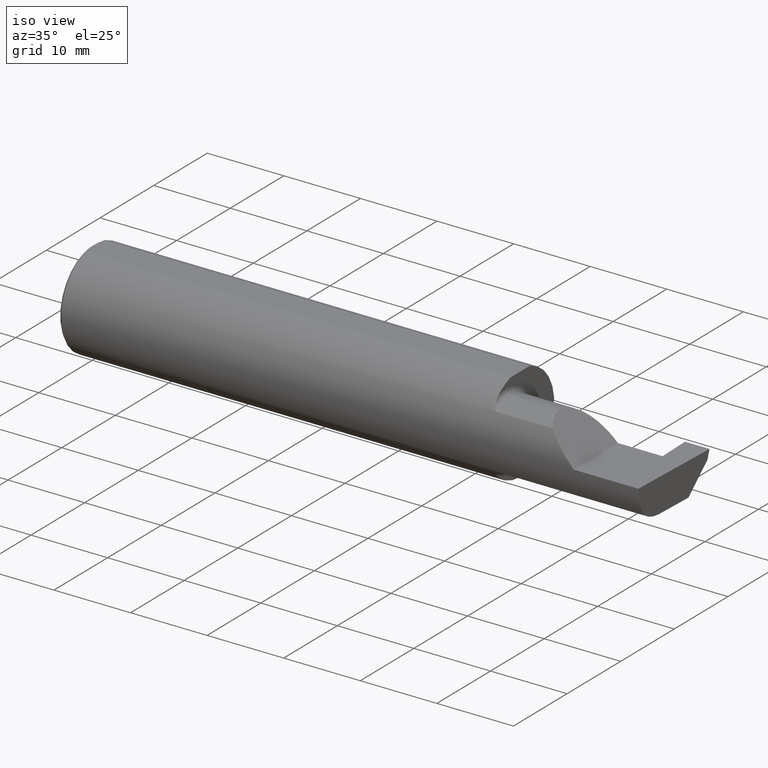
[diagram: clean part render]
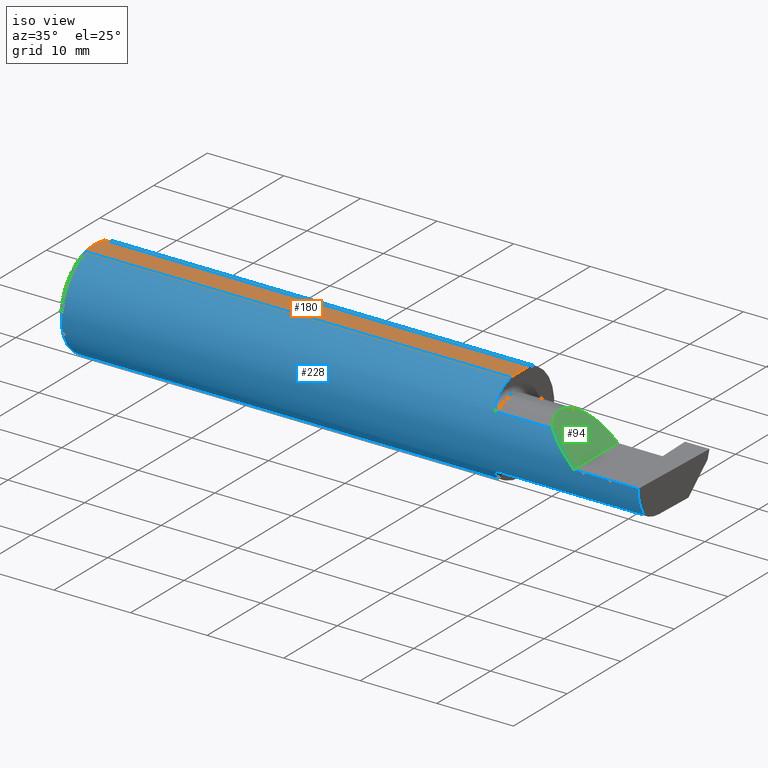
[diagram: same view with three faces highlighted in distinct colors, each labeled with its STEP entity id]
A machine part, iso view with three faces highlighted in distinct colors.
Their STEP definitions:

[orange] entity #180 — the highlighted planar face has unit normal (0, -0, 1).
#27 = CARTESIAN_POINT ( 'NONE',  ( 0.004999999999999471013, 5.665694022114171174E-17, 0.2398500000000000076 ) ) ;
#67 = VECTOR ( 'NONE', #80, 39.37007874015748143 ) ;
#80 = DIRECTION ( 'NONE',  ( -1.000000000000000000, -0.000000000000000000, -0.000000000000000000 ) ) ;
#81 = CARTESIAN_POINT ( 'NONE',  ( 0.005899890343961326084, 0.02378560009989246285, 0.2398500000000000076 ) ) ;
#87 = PLANE ( 'NONE',  #215 ) ;
#91 = ORIENTED_EDGE ( 'NONE', *, *, #401, .T. ) ;
#136 = CARTESIAN_POINT ( 'NONE',  ( 0.009312860630924745670, 0.04712480857212029278, 0.2398500000000000354 ) ) ;
#158 = LINE ( 'NONE', #718, #653 ) ;
#170 = CARTESIAN_POINT ( 'NONE',  ( 0.000000000000000000, -0.06997856814768359246, 0.2398500000000000076 ) ) ;
#180 = ADVANCED_FACE ( 'NONE', ( #336 ), #87, .T. ) ;
#200 = CARTESIAN_POINT ( 'NONE',  ( 0.01180609504125290643, -0.05857511741890331081, 0.2398500000000000076 ) ) ;
#206 = EDGE_CURVE ( 'NONE', #656, #283, #346, .T. ) ;
#215 = AXIS2_PLACEMENT_3D ( 'NONE', #462, #634, #456 ) ;
#244 = ORIENTED_EDGE ( 'NONE', *, *, #646, .T. ) ;
#252 = EDGE_CURVE ( 'NONE', #283, #751, #549, .T. ) ;
#264 = VERTEX_POINT ( 'NONE', #696 ) ;
#277 = CARTESIAN_POINT ( 'NONE',  ( 0.005880636388018715098, -0.02358947477502551168, 0.2398500000000000354 ) ) ;
#283 = VERTEX_POINT ( 'NONE', #757 ) ;
#336 = FACE_OUTER_BOUND ( 'NONE', #417, .T. ) ;
#346 = B_SPLINE_CURVE_WITH_KNOTS ( 'NONE', 3,
 ( #521, #577, #136, #81, #402, #570 ),
 .UNSPECIFIED., .F., .F.,
 ( 4, 2, 4 ),
 ( 0.006064768674679249863, 0.006954995897674296282, 0.007845223120669342701 ),
 .UNSPECIFIED. ) ;
#391 = LINE ( 'NONE', #579, #67 ) ;
#401 = EDGE_CURVE ( 'NONE', #477, #264, #158, .T. ) ;
#402 = CARTESIAN_POINT ( 'NONE',  ( 0.004999999999999748569, 0.01185123536186985863, 0.2398500000000000354 ) ) ;
#417 = EDGE_LOOP ( 'NONE', ( #603, #91, #244, #541, #454 ) ) ;
#430 = CARTESIAN_POINT ( 'NONE',  ( 2.200000000000000178, -0.06997856814768374512, 0.2398500000000000076 ) ) ;
#454 = ORIENTED_EDGE ( 'NONE', *, *, #252, .T. ) ;
#456 = DIRECTION ( 'NONE',  ( 1.000000000000000000, 0.000000000000000000, -0.000000000000000000 ) ) ;
#462 = CARTESIAN_POINT ( 'NONE',  ( 3.000000000000000444, -0.2498499999999999888, 0.2398500000000000076 ) ) ;
#468 = LINE ( 'NONE', #170, #632 ) ;
#475 = DIRECTION ( 'NONE',  ( 1.000000000000000000, 0.000000000000000000, 0.000000000000000000 ) ) ;
#477 = VERTEX_POINT ( 'NONE', #430 ) ;
#511 = CARTESIAN_POINT ( 'NONE',  ( 0.009274236576542579241, -0.04692405468904849164, 0.2398500000000000354 ) ) ;
#521 = CARTESIAN_POINT ( 'NONE',  ( 0.01499999999999998036, 0.06997856814768359246, 0.2398500000000000076 ) ) ;
#541 = ORIENTED_EDGE ( 'NONE', *, *, #206, .T. ) ;
#549 = B_SPLINE_CURVE_WITH_KNOTS ( 'NONE', 3,
 ( #27, #753, #277, #511, #200, #630 ),
 .UNSPECIFIED., .F., .F.,
 ( 4, 2, 4 ),
 ( 0.007845223120669342701, 0.008734561288375080820, 0.009623899456080818940 ),
 .UNSPECIFIED. ) ;
#570 = CARTESIAN_POINT ( 'NONE',  ( 0.004999999999999471013, 5.665694022114171174E-17, 0.2398500000000000076 ) ) ;
#577 = CARTESIAN_POINT ( 'NONE',  ( 0.01181966702888963446, 0.05862357455657472849, 0.2398500000000000631 ) ) ;
#579 = CARTESIAN_POINT ( 'NONE',  ( 0.000000000000000000, 0.06997856814768359246, 0.2398500000000000076 ) ) ;
#593 = DIRECTION ( 'NONE',  ( -0.000000000000000000, 1.000000000000000000, 0.000000000000000000 ) ) ;
#603 = ORIENTED_EDGE ( 'NONE', *, *, #737, .T. ) ;
#630 = CARTESIAN_POINT ( 'NONE',  ( 0.01499999999999999944, -0.06997856814768359246, 0.2398500000000000076 ) ) ;
#632 = VECTOR ( 'NONE', #475, 39.37007874015748143 ) ;
#634 = DIRECTION ( 'NONE',  ( 0.000000000000000000, -0.000000000000000000, 1.000000000000000000 ) ) ;
#646 = EDGE_CURVE ( 'NONE', #264, #656, #391, .T. ) ;
#653 = VECTOR ( 'NONE', #593, 39.37007874015748143 ) ;
#656 = VERTEX_POINT ( 'NONE', #747 ) ;
#696 = CARTESIAN_POINT ( 'NONE',  ( 2.200000000000000178, 0.06997856814768360634, 0.2398500000000000076 ) ) ;
#710 = CARTESIAN_POINT ( 'NONE',  ( 0.01499999999999999944, -0.06997856814768359246, 0.2398500000000000076 ) ) ;
#718 = CARTESIAN_POINT ( 'NONE',  ( 2.200000000000000178, -0.2498499999999999888, 0.2398500000000000076 ) ) ;
#737 = EDGE_CURVE ( 'NONE', #751, #477, #468, .T. ) ;
#747 = CARTESIAN_POINT ( 'NONE',  ( 0.01499999999999998036, 0.06997856814768359246, 0.2398500000000000076 ) ) ;
#751 = VERTEX_POINT ( 'NONE', #710 ) ;
#753 = CARTESIAN_POINT ( 'NONE',  ( 0.004999999999999737293, -0.01183939972798749192, 0.2398500000000000631 ) ) ;
#757 = CARTESIAN_POINT ( 'NONE',  ( 0.004999999999999471013, 5.665694022114171174E-17, 0.2398500000000000076 ) ) ;

[blue] entity #228 — the highlighted cylindrical surface (partial cylindrical patch) has radius 6.3462 mm, axis along (-1, -0, -0).
#10 = EDGE_CURVE ( 'NONE', #130, #264, #173, .T. ) ;
#14 = CARTESIAN_POINT ( 'NONE',  ( 2.200000000000000178, -0.1616050818046604332, 0.1905487340154980169 ) ) ;
#20 = LINE ( 'NONE', #647, #278 ) ;
#23 = CARTESIAN_POINT ( 'NONE',  ( 2.980602402804240381, -0.2354324170447252007, -0.09714751587401852795 ) ) ;
#25 = ORIENTED_EDGE ( 'NONE', *, *, #394, .F. ) ;
#57 = LINE ( 'NONE', #310, #383 ) ;
#58 = CARTESIAN_POINT ( 'NONE',  ( 2.511704467739034552, -0.2080850024789292485, 0.1382955322609664139 ) ) ;
#64 = CARTESIAN_POINT ( 'NONE',  ( 2.221700027347579098, -0.2077785947292768720, -0.1387580622202825020 ) ) ;
#67 = VECTOR ( 'NONE', #80, 39.37007874015748143 ) ;
#75 = CARTESIAN_POINT ( 'NONE',  ( 2.201849548162864600, -0.1805300287242674051, 0.1728462070311779786 ) ) ;
#79 = EDGE_CURVE ( 'NONE', #399, #578, #664, .T. ) ;
#80 = DIRECTION ( 'NONE',  ( -1.000000000000000000, -0.000000000000000000, -0.000000000000000000 ) ) ;
#90 = DIRECTION ( 'NONE',  ( 0.000000000000000000, 0.000000000000000000, 1.000000000000000000 ) ) ;
#98 = VERTEX_POINT ( 'NONE', #253 ) ;
#106 = AXIS2_PLACEMENT_3D ( 'NONE', #450, #447, #691 ) ;
#112 = CARTESIAN_POINT ( 'NONE',  ( 2.199999999999998845, -0.1716188362992555061, -0.1820560320165479640 ) ) ;
#128 = CARTESIAN_POINT ( 'NONE',  ( 2.223318040126429640, -0.2080850024789290820, -0.1382955322609666915 ) ) ;
#130 = VERTEX_POINT ( 'NONE', #750 ) ;
#131 = CARTESIAN_POINT ( 'NONE',  ( 2.218876997637615034, -0.2068363917296600907, 0.1401586554522229189 ) ) ;
#142 = ORIENTED_EDGE ( 'NONE', *, *, #164, .T. ) ;
#144 = CARTESIAN_POINT ( 'NONE',  ( 2.206159563508733878, -0.1933019864360849271, 0.1584298865564830183 ) ) ;
#146 = AXIS2_PLACEMENT_3D ( 'NONE', #347, #171, #763 ) ;
#150 = FACE_OUTER_BOUND ( 'NONE', #524, .T. ) ;
#155 = CARTESIAN_POINT ( 'NONE',  ( 2.650000000000000355, -0.2498499999999999610, 4.286263797015727350E-17 ) ) ;
#164 = EDGE_CURVE ( 'NONE', #245, #411, #20, .T. ) ;
#170 = CARTESIAN_POINT ( 'NONE',  ( 0.000000000000000000, -0.06997856814768359246, 0.2398500000000000076 ) ) ;
#171 = DIRECTION ( 'NONE',  ( -1.000000000000000000, -0.000000000000000000, -0.000000000000000000 ) ) ;
#172 = ORIENTED_EDGE ( 'NONE', *, *, #535, .F. ) ;
#173 = CIRCLE ( 'NONE', #628, 0.2498499999999999888 ) ;
#185 = CARTESIAN_POINT ( 'NONE',  ( 2.549499999999999655, -0.2080850024789291652, 0.1382955322609665250 ) ) ;
#187 = VERTEX_POINT ( 'NONE', #688 ) ;
#190 = VECTOR ( 'NONE', #576, 39.37007874015748143 ) ;
#203 = CARTESIAN_POINT ( 'NONE',  ( 0.000000000000000000, 0.000000000000000000, 0.000000000000000000 ) ) ;
#204 = ORIENTED_EDGE ( 'NONE', *, *, #651, .T. ) ;
#213 = CARTESIAN_POINT ( 'NONE',  ( 2.221718393013767834, -0.2077830475237241459, 0.1387513848711935949 ) ) ;
#216 = CIRCLE ( 'NONE', #602, 0.2498499999999999888 ) ;
#225 = ORIENTED_EDGE ( 'NONE', *, *, #79, .T. ) ;
#228 = ADVANCED_FACE ( 'NONE', ( #150 ), #339, .T. ) ;
#233 = VERTEX_POINT ( 'NONE', #761 ) ;
#238 = CARTESIAN_POINT ( 'NONE',  ( 2.208176740666626614, -0.1972027065478074437, -0.1535263573771913914 ) ) ;
#245 = VERTEX_POINT ( 'NONE', #515 ) ;
#247 = DIRECTION ( 'NONE',  ( 1.000000000000000000, 0.000000000000000000, 0.000000000000000000 ) ) ;
#253 = CARTESIAN_POINT ( 'NONE',  ( 2.980479240051444378, -0.2080850024789291652, -0.1382955322609665250 ) ) ;
#263 = CARTESIAN_POINT ( 'NONE',  ( 2.212616400345755796, -0.2024684335577102701, 0.1464246884265637538 ) ) ;
#264 = VERTEX_POINT ( 'NONE', #696 ) ;
#269 = B_SPLINE_CURVE_WITH_KNOTS ( 'NONE', 3,
 ( #373, #128, #64, #543, #617, #741, #783, #238, #299, #726, #112, #572 ),
 .UNSPECIFIED., .F., .F.,
 ( 4, 2, 2, 2, 2, 4 ),
 ( 1.964491429041408350E-07, 0.0001260981470478282575, 0.0002519998449527523351, 0.0005038032407626152898, 0.001007410032382341199, 0.002014623615621801908 ),
 .UNSPECIFIED. ) ;
#275 = ORIENTED_EDGE ( 'NONE', *, *, #567, .T. ) ;
#278 = VECTOR ( 'NONE', #699, 39.37007874015748854 ) ;
#299 = CARTESIAN_POINT ( 'NONE',  ( 2.206147634408387681, -0.1932733126899461307, -0.1584637047788196584 ) ) ;
#301 = ORIENTED_EDGE ( 'NONE', *, *, #646, .F. ) ;
#307 = CARTESIAN_POINT ( 'NONE',  ( 2.200000000000000178, 0.000000000000000000, 0.000000000000000000 ) ) ;
#310 = CARTESIAN_POINT ( 'NONE',  ( 2.549499999999999655, -0.2080850024789291652, -0.1382955322609665250 ) ) ;
#317 = CARTESIAN_POINT ( 'NONE',  ( 2.600434159100403875, -0.2498499999999999055, 0.04956584089959691769 ) ) ;
#330 = CARTESIAN_POINT ( 'NONE',  ( 2.225000000000000089, -0.2080850024789291375, -0.1382955322609665805 ) ) ;
#333 = ORIENTED_EDGE ( 'NONE', *, *, #518, .F. ) ;
#339 = CYLINDRICAL_SURFACE ( 'NONE', #640, 0.2498499999999999888 ) ;
#347 = CARTESIAN_POINT ( 'NONE',  ( 0.01499999999999999944, 0.000000000000000000, 0.000000000000000000 ) ) ;
#355 = CARTESIAN_POINT ( 'NONE',  ( 2.225000000000000089, -0.2080850024789292485, 0.1382955322609664972 ) ) ;
#358 = VECTOR ( 'NONE', #434, 39.37007874015748143 ) ;
#369 = CARTESIAN_POINT ( 'NONE',  ( 2.200000000000000178, 0.000000000000000000, 0.000000000000000000 ) ) ;
#373 = CARTESIAN_POINT ( 'NONE',  ( 2.225000000000000089, -0.2080850024789291375, -0.1382955322609665805 ) ) ;
#376 = DIRECTION ( 'NONE',  ( -1.000000000000000000, -0.000000000000000000, -0.000000000000000000 ) ) ;
#379 = VERTEX_POINT ( 'NONE', #355 ) ;
#381 = CARTESIAN_POINT ( 'NONE',  ( 2.650000000000000355, -0.2498499999999999610, 4.286263797015727350E-17 ) ) ;
#383 = VECTOR ( 'NONE', #376, 39.37007874015748143 ) ;
#391 = LINE ( 'NONE', #579, #67 ) ;
#394 = EDGE_CURVE ( 'NONE', #187, #751, #500, .T. ) ;
#399 = VERTEX_POINT ( 'NONE', #155 ) ;
#400 = CARTESIAN_POINT ( 'NONE',  ( 2.200000000000000178, -0.1665641037263010105, 0.1863429692936361681 ) ) ;
#411 = VERTEX_POINT ( 'NONE', #778 ) ;
#430 = CARTESIAN_POINT ( 'NONE',  ( 2.200000000000000178, -0.06997856814768374512, 0.2398500000000000076 ) ) ;
#434 = DIRECTION ( 'NONE',  ( 1.000000000000000000, 0.000000000000000000, 0.000000000000000000 ) ) ;
#439 = DIRECTION ( 'NONE',  ( 0.000000000000000000, 0.000000000000000000, -1.000000000000000000 ) ) ;
#447 = DIRECTION ( 'NONE',  ( -1.000000000000000000, -0.000000000000000000, -0.000000000000000000 ) ) ;
#449 = ORIENTED_EDGE ( 'NONE', *, *, #542, .F. ) ;
#450 = CARTESIAN_POINT ( 'NONE',  ( 0.01499999999999999944, 0.000000000000000000, 0.000000000000000000 ) ) ;
#455 = CARTESIAN_POINT ( 'NONE',  ( 2.980479240051444378, -0.2080850024789291652, -0.1382955322609665250 ) ) ;
#457 = ORIENTED_EDGE ( 'NONE', *, *, #560, .F. ) ;
#461 = CIRCLE ( 'NONE', #106, 0.2498499999999999888 ) ;
#468 = LINE ( 'NONE', #170, #632 ) ;
#469 = EDGE_CURVE ( 'NONE', #98, #648, #57, .T. ) ;
#470 = ORIENTED_EDGE ( 'NONE', *, *, #737, .F. ) ;
#475 = DIRECTION ( 'NONE',  ( 1.000000000000000000, 0.000000000000000000, 0.000000000000000000 ) ) ;
#477 = VERTEX_POINT ( 'NONE', #430 ) ;
#493 = LINE ( 'NONE', #185, #358 ) ;
#500 = CIRCLE ( 'NONE', #146, 0.2498499999999999888 ) ;
#504 = ORIENTED_EDGE ( 'NONE', *, *, #620, .F. ) ;
#506 = CARTESIAN_POINT ( 'NONE',  ( 2.982632426700501327, -0.2498495826666993214, -0.0004566631977848650934 ) ) ;
#510 = CARTESIAN_POINT ( 'NONE',  ( 2.214343523383978773, -0.2041337200786084161, 0.1440846171672511278 ) ) ;
#514 = CARTESIAN_POINT ( 'NONE',  ( 2.208182335268384033, -0.1972192205116131414, 0.1535061413537209263 ) ) ;
#515 = CARTESIAN_POINT ( 'NONE',  ( 2.982632426700501327, -0.2498495826666993214, -0.0004566631977848650934 ) ) ;
#517 = CARTESIAN_POINT ( 'NONE',  ( 4.499279347985559139E-32, -0.2498499999999999610, 3.673940397442053459E-16 ) ) ;
#518 = EDGE_CURVE ( 'NONE', #477, #233, #216, .T. ) ;
#520 = CARTESIAN_POINT ( 'NONE',  ( 2.981341028891337785, -0.2497592792593325561, -0.04986346618389873170 ) ) ;
#524 = EDGE_LOOP ( 'NONE', ( #142, #275, #225, #172, #457, #333, #470, #25, #504, #301, #716, #449, #531, #204 ) ) ;
#531 = ORIENTED_EDGE ( 'NONE', *, *, #469, .F. ) ;
#535 = EDGE_CURVE ( 'NONE', #379, #578, #493, .T. ) ;
#542 = EDGE_CURVE ( 'NONE', #648, #130, #269, .T. ) ;
#543 = CARTESIAN_POINT ( 'NONE',  ( 2.218863362722770294, -0.2068301641248771472, -0.1401678546132359982 ) ) ;
#557 = DIRECTION ( 'NONE',  ( 1.000000000000000000, 0.000000000000000000, 0.000000000000000000 ) ) ;
#560 = EDGE_CURVE ( 'NONE', #233, #379, #773, .T. ) ;
#565 = CARTESIAN_POINT ( 'NONE',  ( 2.223329956043142541, -0.2080850024798589770, 0.1382955322595675884 ) ) ;
#567 = EDGE_CURVE ( 'NONE', #411, #399, #756, .T. ) ;
#569 = CARTESIAN_POINT ( 'NONE',  ( 2.225000000000000089, -0.2080850024789292485, 0.1382955322609664972 ) ) ;
#572 = CARTESIAN_POINT ( 'NONE',  ( 2.200000000000000178, -0.1616050818046604332, -0.1905487340154980169 ) ) ;
#575 =( BOUNDED_CURVE ( )  B_SPLINE_CURVE ( 3, ( #455, #23, #520, #506 ),
 .UNSPECIFIED., .F., .T. ) 
 B_SPLINE_CURVE_WITH_KNOTS ( ( 4, 4 ),
 ( 0.05713034791898981279, 0.6418805321921904339 ),
 .UNSPECIFIED. ) 
 CURVE ( )  GEOMETRIC_REPRESENTATION_ITEM ( )  RATIONAL_B_SPLINE_CURVE ( ( 1.000000000000000000, 0.9717080070095597266, 0.9717080070095597266, 1.000000000000000000 ) ) 
 REPRESENTATION_ITEM ( '' )  );
#576 = DIRECTION ( 'NONE',  ( -1.000000000000000000, -0.000000000000000000, -0.000000000000000000 ) ) ;
#578 = VERTEX_POINT ( 'NONE', #760 ) ;
#579 = CARTESIAN_POINT ( 'NONE',  ( 0.000000000000000000, 0.06997856814768359246, 0.2398500000000000076 ) ) ;
#602 = AXIS2_PLACEMENT_3D ( 'NONE', #369, #247, #439 ) ;
#617 = CARTESIAN_POINT ( 'NONE',  ( 2.217611663768900510, -0.2061921161193830954, -0.1411075319999377242 ) ) ;
#620 = EDGE_CURVE ( 'NONE', #656, #187, #461, .T. ) ;
#628 = AXIS2_PLACEMENT_3D ( 'NONE', #307, #557, #744 ) ;
#632 = VECTOR ( 'NONE', #475, 39.37007874015748143 ) ;
#640 = AXIS2_PLACEMENT_3D ( 'NONE', #203, #693, #90 ) ;
#646 = EDGE_CURVE ( 'NONE', #264, #656, #391, .T. ) ;
#647 = CARTESIAN_POINT ( 'NONE',  ( 2.977412177158956563, -0.2496672875357696664, -0.1999314649951114686 ) ) ;
#648 = VERTEX_POINT ( 'NONE', #330 ) ;
#651 = EDGE_CURVE ( 'NONE', #98, #245, #575, .T. ) ;
#656 = VERTEX_POINT ( 'NONE', #747 ) ;
#664 =( BOUNDED_CURVE ( )  B_SPLINE_CURVE ( 3, ( #381, #317, #798, #58 ),
 .UNSPECIFIED., .F., .T. ) 
 B_SPLINE_CURVE_WITH_KNOTS ( ( 4, 4 ),
 ( 4.712388980384689674, 5.298966915116346321 ),
 .UNSPECIFIED. ) 
 CURVE ( )  GEOMETRIC_REPRESENTATION_ITEM ( )  RATIONAL_B_SPLINE_CURVE ( ( 1.000000000000000000, 0.9715321379117538569, 0.9715321379117538569, 1.000000000000000000 ) ) 
 REPRESENTATION_ITEM ( '' )  );
#688 = CARTESIAN_POINT ( 'NONE',  ( 0.01499999999999999944, 0.000000000000000000, -0.2498499999999999888 ) ) ;
#691 = DIRECTION ( 'NONE',  ( 0.000000000000000000, 0.000000000000000000, 1.000000000000000000 ) ) ;
#693 = DIRECTION ( 'NONE',  ( -1.000000000000000000, -0.000000000000000000, -0.000000000000000000 ) ) ;
#696 = CARTESIAN_POINT ( 'NONE',  ( 2.200000000000000178, 0.06997856814768360634, 0.2398500000000000076 ) ) ;
#698 = CARTESIAN_POINT ( 'NONE',  ( 2.202968662030528435, -0.1849684355203377872, 0.1680843977756266983 ) ) ;
#699 = DIRECTION ( 'NONE',  ( 0.02616100201822768243, -0.0009135623211515309658, 0.9996573249755575929 ) ) ;
#710 = CARTESIAN_POINT ( 'NONE',  ( 0.01499999999999999944, -0.06997856814768359246, 0.2398500000000000076 ) ) ;
#716 = ORIENTED_EDGE ( 'NONE', *, *, #10, .F. ) ;
#726 = CARTESIAN_POINT ( 'NONE',  ( 2.201385488563269988, -0.1808287530430325862, -0.1728790649396286794 ) ) ;
#737 = EDGE_CURVE ( 'NONE', #751, #477, #468, .T. ) ;
#741 = CARTESIAN_POINT ( 'NONE',  ( 2.214302603425052141, -0.2041009206016214106, -0.1441313430770039539 ) ) ;
#744 = DIRECTION ( 'NONE',  ( 0.000000000000000000, 0.000000000000000000, -1.000000000000000000 ) ) ;
#747 = CARTESIAN_POINT ( 'NONE',  ( 0.01499999999999998036, 0.06997856814768359246, 0.2398500000000000076 ) ) ;
#749 = CARTESIAN_POINT ( 'NONE',  ( 2.217647060162627692, -0.2062109266231183236, 0.1410799729252289469 ) ) ;
#750 = CARTESIAN_POINT ( 'NONE',  ( 2.200000000000000178, -0.1616050818046604332, -0.1905487340154980169 ) ) ;
#751 = VERTEX_POINT ( 'NONE', #710 ) ;
#752 = CARTESIAN_POINT ( 'NONE',  ( 2.200367168219774072, -0.1713400252854603567, 0.1819601557798505298 ) ) ;
#756 = LINE ( 'NONE', #517, #190 ) ;
#760 = CARTESIAN_POINT ( 'NONE',  ( 2.511704467739034552, -0.2080850024789292485, 0.1382955322609664139 ) ) ;
#761 = CARTESIAN_POINT ( 'NONE',  ( 2.200000000000000178, -0.1616050818046604332, 0.1905487340154980169 ) ) ;
#763 = DIRECTION ( 'NONE',  ( 0.000000000000000000, 0.000000000000000000, 1.000000000000000000 ) ) ;
#773 = B_SPLINE_CURVE_WITH_KNOTS ( 'NONE', 3,
 ( #14, #400, #752, #75, #698, #144, #514, #263, #510, #749, #131, #213, #565, #569 ),
 .UNSPECIFIED., .F., .F.,
 ( 4, 2, 2, 2, 2, 2, 4 ),
 ( 0.0003834465838148164922, 0.0008781406165086623906, 0.001372834649202508235, 0.001867528681896354296, 0.002114875698243280470, 0.002238549206416751147, 0.002362222714590221824 ),
 .UNSPECIFIED. ) ;
#778 = CARTESIAN_POINT ( 'NONE',  ( 2.982644377562602589, -0.2498499999999999610, 1.813681607540488003E-17 ) ) ;
#783 = CARTESIAN_POINT ( 'NONE',  ( 2.212579853086619419, -0.2024300470081735748, -0.1464774911482684405 ) ) ;
#798 = CARTESIAN_POINT ( 'NONE',  ( 2.552984868485333347, -0.2355204011147992438, 0.09701513151466735485 ) ) ;

[green] entity #94 — the highlighted planar face has unit normal (-0.7071, 0, -0.7071).
#12 = DIRECTION ( 'NONE',  ( -0.000000000000000000, 1.000000000000000000, -0.000000000000000000 ) ) ;
#51 = PLANE ( 'NONE',  #356 ) ;
#58 = CARTESIAN_POINT ( 'NONE',  ( 2.511704467739034552, -0.2080850024789292485, 0.1382955322609664139 ) ) ;
#63 = ORIENTED_EDGE ( 'NONE', *, *, #478, .F. ) ;
#72 = VERTEX_POINT ( 'NONE', #679 ) ;
#76 =( BOUNDED_CURVE ( )  B_SPLINE_CURVE ( 3, ( #731, #175, #315, #556 ),
 .UNSPECIFIED., .F., .T. ) 
 B_SPLINE_CURVE_WITH_KNOTS ( ( 4, 4 ),
 ( 0.000000000000000000, 1.570796326794896558 ),
 .UNSPECIFIED. ) 
 CURVE ( )  GEOMETRIC_REPRESENTATION_ITEM ( )  RATIONAL_B_SPLINE_CURVE ( ( 1.000000000000000000, 0.8047378541243649375, 0.8047378541243649375, 1.000000000000000000 ) ) 
 REPRESENTATION_ITEM ( '' )  );
#79 = EDGE_CURVE ( 'NONE', #399, #578, #664, .T. ) ;
#94 = ADVANCED_FACE ( 'NONE', ( #129 ), #51, .F. ) ;
#117 = EDGE_CURVE ( 'NONE', #399, #728, #610, .T. ) ;
#129 = FACE_OUTER_BOUND ( 'NONE', #486, .T. ) ;
#155 = CARTESIAN_POINT ( 'NONE',  ( 2.650000000000000355, -0.2498499999999999610, 4.286263797015727350E-17 ) ) ;
#175 = CARTESIAN_POINT ( 'NONE',  ( 2.475000000000001421, 0.001662626584708371512, 0.1749999999999999889 ) ) ;
#285 = CARTESIAN_POINT ( 'NONE',  ( 2.511704467739034552, -0.2080850024789292485, 0.1382955322609664139 ) ) ;
#292 = CARTESIAN_POINT ( 'NONE',  ( 2.475000000000001421, -0.1008499999999999674, 0.1749999999999999889 ) ) ;
#300 = CARTESIAN_POINT ( 'NONE',  ( 2.650000000000000355, -0.2500000000000000555, 4.286263797015727350E-17 ) ) ;
#315 = CARTESIAN_POINT ( 'NONE',  ( 2.547487373415292744, 0.07414999999999996594, 0.1025126265847083745 ) ) ;
#317 = CARTESIAN_POINT ( 'NONE',  ( 2.600434159100403875, -0.2498499999999999055, 0.04956584089959691769 ) ) ;
#356 = AXIS2_PLACEMENT_3D ( 'NONE', #442, #683, #378 ) ;
#378 = DIRECTION ( 'NONE',  ( -0.7071067811865454633, 0.000000000000000000, 0.7071067811865495711 ) ) ;
#381 = CARTESIAN_POINT ( 'NONE',  ( 2.650000000000000355, -0.2498499999999999610, 4.286263797015727350E-17 ) ) ;
#399 = VERTEX_POINT ( 'NONE', #155 ) ;
#408 = CARTESIAN_POINT ( 'NONE',  ( 2.475000000000001421, -0.1400387324517231857, 0.1750000000000000167 ) ) ;
#410 = EDGE_CURVE ( 'NONE', #578, #72, #791, .T. ) ;
#421 = ORIENTED_EDGE ( 'NONE', *, *, #79, .F. ) ;
#432 = ORIENTED_EDGE ( 'NONE', *, *, #117, .T. ) ;
#442 = CARTESIAN_POINT ( 'NONE',  ( 2.650000000000000355, -0.2500000000000000555, 4.286263797015727350E-17 ) ) ;
#473 = VECTOR ( 'NONE', #12, 39.37007874015748143 ) ;
#478 = EDGE_CURVE ( 'NONE', #72, #728, #76, .T. ) ;
#486 = EDGE_LOOP ( 'NONE', ( #652, #421, #432, #63 ) ) ;
#532 = CARTESIAN_POINT ( 'NONE',  ( 2.650000000000000355, 0.07414999999999997982, 4.286263797015727350E-17 ) ) ;
#556 = CARTESIAN_POINT ( 'NONE',  ( 2.650000000000000355, 0.07414999999999997982, 4.286263797015727350E-17 ) ) ;
#578 = VERTEX_POINT ( 'NONE', #760 ) ;
#601 = CARTESIAN_POINT ( 'NONE',  ( 2.487690731615568307, -0.1771157075472510889, 0.1623092683844330197 ) ) ;
#610 = LINE ( 'NONE', #300, #473 ) ;
#652 = ORIENTED_EDGE ( 'NONE', *, *, #410, .F. ) ;
#664 =( BOUNDED_CURVE ( )  B_SPLINE_CURVE ( 3, ( #381, #317, #798, #58 ),
 .UNSPECIFIED., .F., .T. ) 
 B_SPLINE_CURVE_WITH_KNOTS ( ( 4, 4 ),
 ( 4.712388980384689674, 5.298966915116346321 ),
 .UNSPECIFIED. ) 
 CURVE ( )  GEOMETRIC_REPRESENTATION_ITEM ( )  RATIONAL_B_SPLINE_CURVE ( ( 1.000000000000000000, 0.9715321379117538569, 0.9715321379117538569, 1.000000000000000000 ) ) 
 REPRESENTATION_ITEM ( '' )  );
#679 = CARTESIAN_POINT ( 'NONE',  ( 2.475000000000001421, -0.1008499999999999674, 0.1749999999999999889 ) ) ;
#683 = DIRECTION ( 'NONE',  ( -0.7071067811865495711, 0.000000000000000000, -0.7071067811865454633 ) ) ;
#728 = VERTEX_POINT ( 'NONE', #532 ) ;
#731 = CARTESIAN_POINT ( 'NONE',  ( 2.475000000000001421, -0.1008499999999999674, 0.1749999999999999889 ) ) ;
#760 = CARTESIAN_POINT ( 'NONE',  ( 2.511704467739034552, -0.2080850024789292485, 0.1382955322609664139 ) ) ;
#791 =( BOUNDED_CURVE ( )  B_SPLINE_CURVE ( 3, ( #285, #601, #408, #292 ),
 .UNSPECIFIED., .F., .T. ) 
 B_SPLINE_CURVE_WITH_KNOTS ( ( 4, 4 ),
 ( 5.623622464215678463, 6.283185307179586232 ),
 .UNSPECIFIED. ) 
 CURVE ( )  GEOMETRIC_REPRESENTATION_ITEM ( )  RATIONAL_B_SPLINE_CURVE ( ( 1.000000000000000000, 0.9640754331822828371, 0.9640754331822828371, 1.000000000000000000 ) ) 
 REPRESENTATION_ITEM ( '' )  );
#798 = CARTESIAN_POINT ( 'NONE',  ( 2.552984868485333347, -0.2355204011147992438, 0.09701513151466735485 ) ) ;